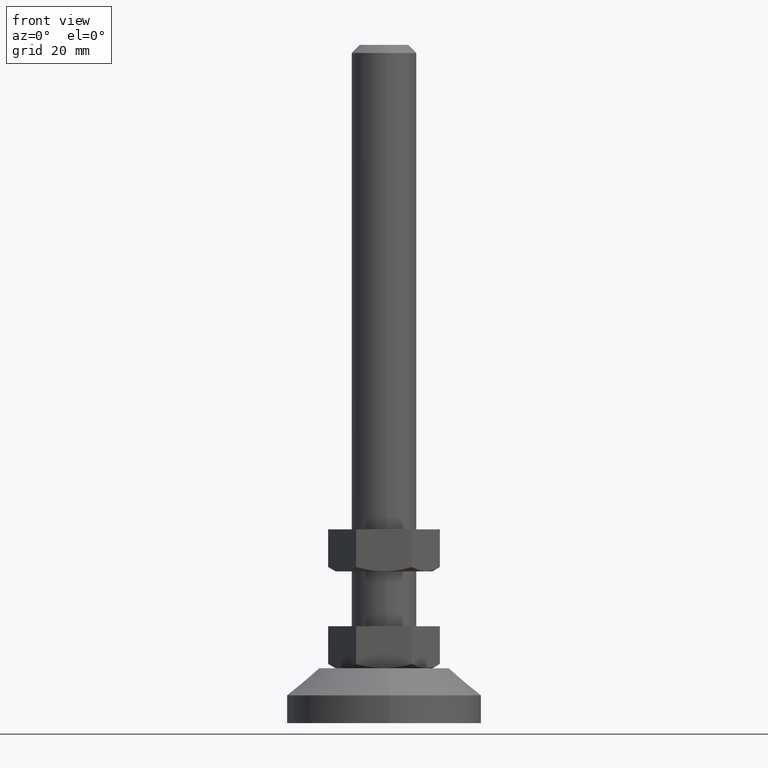
[diagram: clean part render]
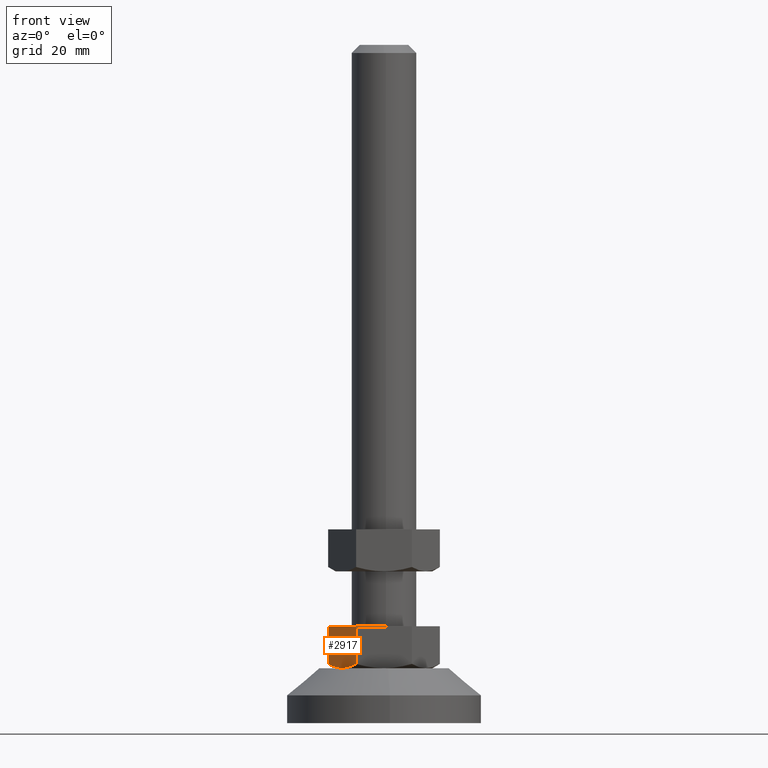
[diagram: same view with one face highlighted and labeled with its STEP entity id]
A machine part, front view. The second image highlights one B-rep face of the part: STEP entity #2917.
In plain terms, the highlighted face is a freeform B-spline surface patch.
Its self-contained STEP definition (entity closure, byte-faithful):
#2823=CARTESIAN_POINT('',(-17.300000000000001,0.0,30.0));
#2824=VERTEX_POINT('',#2823);
#2832=CARTESIAN_POINT('',(-8.639746000000001,-15.0,30.0));
#2833=VERTEX_POINT('',#2832);
#2834=CARTESIAN_POINT('',(-8.639746000000001,-15.0,30.0));
#2835=CARTESIAN_POINT('',(-17.300000000000001,0.0,30.0));
#2836=QUASI_UNIFORM_CURVE('',1,(#2834,#2835),.UNSPECIFIED.,.F.,.U.);
#2837=EDGE_CURVE('',#2833,#2824,#2836,.T.);
#2874=CARTESIAN_POINT('',(-17.732579670514689,0.749249970927124,16.352317868992660));
#2875=CARTESIAN_POINT('',(-8.207166097199142,-15.749250373258450,16.352317868992660));
#2876=CARTESIAN_POINT('',(-17.732579670514689,0.749249970927124,30.649270977960601));
#2877=CARTESIAN_POINT('',(-8.207166097199142,-15.749250373258450,30.649270977960601));
#2878=B_SPLINE_SURFACE_WITH_KNOTS('',1,1,((#2874,#2876),(#2875,#2877)),.UNSPECIFIED.,.F.,.F.,.U.,(2,2),(2,2),(0.0,19.050827209068778),(0.0,14.296953108967941),.UNSPECIFIED.);
#2879=CARTESIAN_POINT('',(-17.300000000000001,7.019655E-016,18.339745951230849));
#2880=VERTEX_POINT('',#2879);
#2881=CARTESIAN_POINT('',(-17.300000000000001,0.0,30.0));
#2882=CARTESIAN_POINT('',(-17.300000000000001,7.019655E-016,18.339745951230849));
#2883=QUASI_UNIFORM_CURVE('',1,(#2881,#2882),.UNSPECIFIED.,.F.,.U.);
#2884=EDGE_CURVE('',#2824,#2880,#2883,.T.);
#2885=ORIENTED_EDGE('',*,*,#2884,.T.);
#2886=CARTESIAN_POINT('',(-8.639746000000001,-15.0,18.345671394023451));
#2887=VERTEX_POINT('',#2886);
#2888=CARTESIAN_POINT('',(-17.300000000000001,7.019655E-016,18.339745951230849));
#2889=CARTESIAN_POINT('',(-16.592941722767819,-1.224660865429785,17.931525664537681));
#2890=CARTESIAN_POINT('',(-15.880722203566300,-2.458261264219811,17.595166574799919));
#2891=CARTESIAN_POINT('',(-14.801235094892631,-4.327987790728750,17.245981053792121));
#2892=CARTESIAN_POINT('',(-14.439541958482710,-4.954458682477288,17.155540189445968));
#2893=CARTESIAN_POINT('',(-13.711936844397540,-6.214707713426907,17.033398389028481));
#2894=CARTESIAN_POINT('',(-13.346021212827720,-6.848492181359075,17.001748326998641));
#2895=CARTESIAN_POINT('',(-12.885799685170820,-7.645619253481162,17.001546577077828));
#2896=CARTESIAN_POINT('',(-12.793614645803309,-7.805288426061167,17.003465697697131));
#2897=CARTESIAN_POINT('',(-12.608961067811590,-8.125117806339835,17.011251166375061));
#2898=CARTESIAN_POINT('',(-12.516661840701360,-8.284984757892696,17.017113104138200));
#2899=CARTESIAN_POINT('',(-12.240427566274469,-8.763436558082764,17.040486526452181));
#2900=CARTESIAN_POINT('',(-12.056912984918849,-9.081293138309432,17.063800979005240));
#2901=CARTESIAN_POINT('',(-11.508210259183731,-10.031674141687260,17.155931109065211));
#2902=CARTESIAN_POINT('',(-11.144867414517400,-10.661002411966070,17.246985155436381));
#2903=CARTESIAN_POINT('',(-10.061320491401821,-12.537760743388420,17.598259512653289));
#2904=CARTESIAN_POINT('',(-9.347572270797691,-13.774008930688920,17.936281682498400));
#2905=CARTESIAN_POINT('',(-8.639745999999967,-15.000000000000050,18.345671394023078));
#2906=B_SPLINE_CURVE_WITH_KNOTS('',3,(#2888,#2889,#2890,#2891,#2892,#2893,#2894,#2895,#2896,#2897,#2898,#2899,#2900,#2901,#2902,#2903,#2904,#2905),.UNSPECIFIED.,.F.,.U.,(4,2,2,2,2,2,2,2,4),(0.0,0.250000000000001,0.375000000000001,0.500000000000002,0.531250000000002,0.562500000000002,0.625000000000001,0.750000000000001,1.0),.UNSPECIFIED.);
#2907=EDGE_CURVE('',#2880,#2887,#2906,.T.);
#2908=ORIENTED_EDGE('',*,*,#2907,.T.);
#2909=CARTESIAN_POINT('',(-8.639746000000001,-15.0,30.0));
#2910=CARTESIAN_POINT('',(-8.639746000000001,-15.0,18.345671394023451));
#2911=QUASI_UNIFORM_CURVE('',1,(#2909,#2910),.UNSPECIFIED.,.F.,.U.);
#2912=EDGE_CURVE('',#2833,#2887,#2911,.T.);
#2913=ORIENTED_EDGE('',*,*,#2912,.F.);
#2914=ORIENTED_EDGE('',*,*,#2837,.T.);
#2915=EDGE_LOOP('',(#2885,#2908,#2913,#2914));
#2916=FACE_OUTER_BOUND('',#2915,.T.);
#2917=ADVANCED_FACE('',(#2916),#2878,.T.);